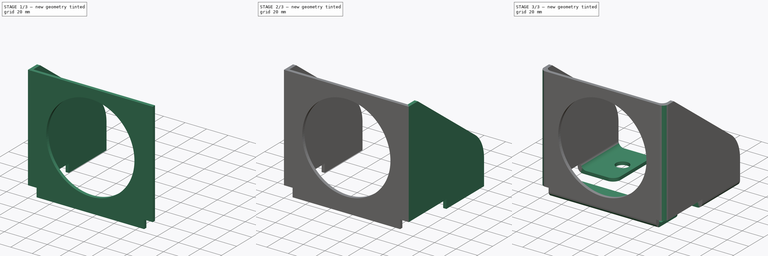
[diagram: build sequence overview — one tinted view per stage of 3, left to right]
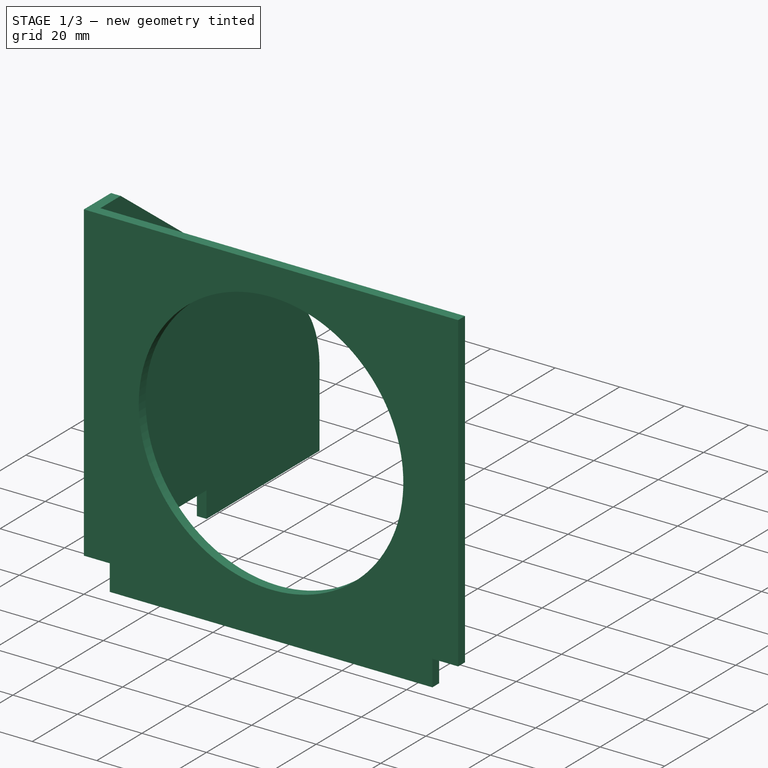
[diagram: stage 1 of 3 — iso view after this stage's code; geometry added in this stage tinted green]
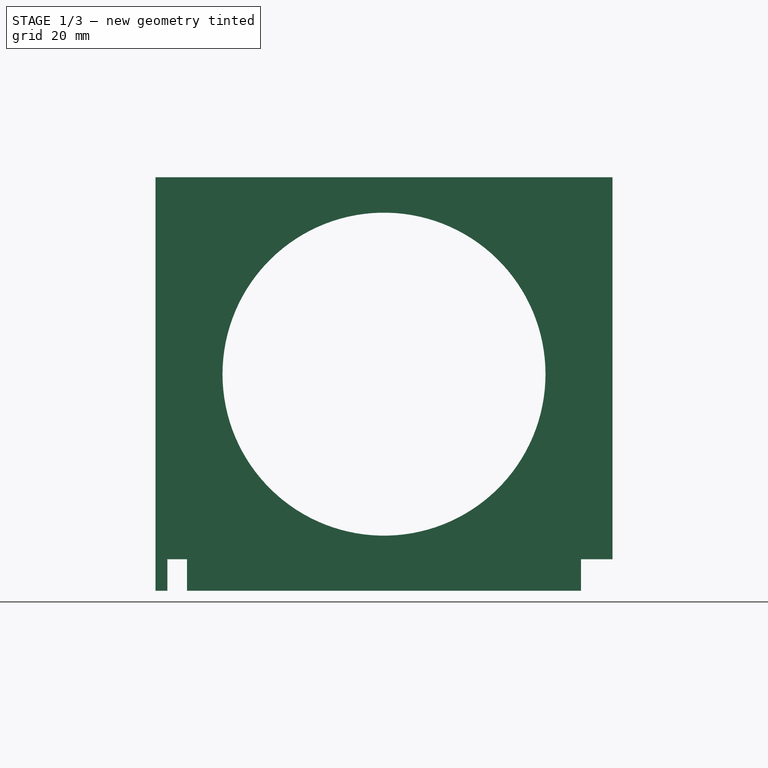
[diagram: stage 1 of 3 — front view after this stage's code; geometry added in this stage tinted green]
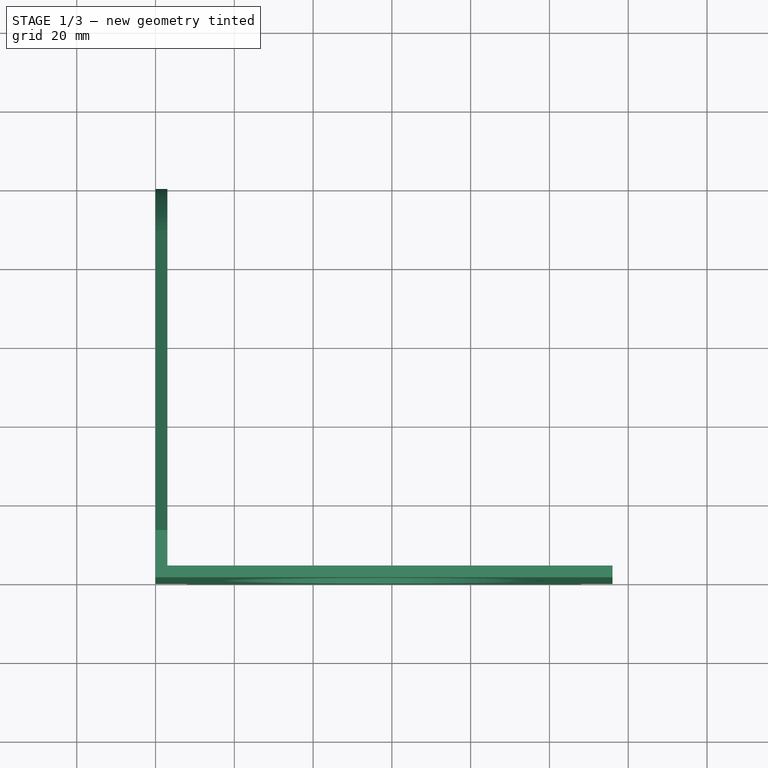
[diagram: stage 1 of 3 — top view after this stage's code; geometry added in this stage tinted green]
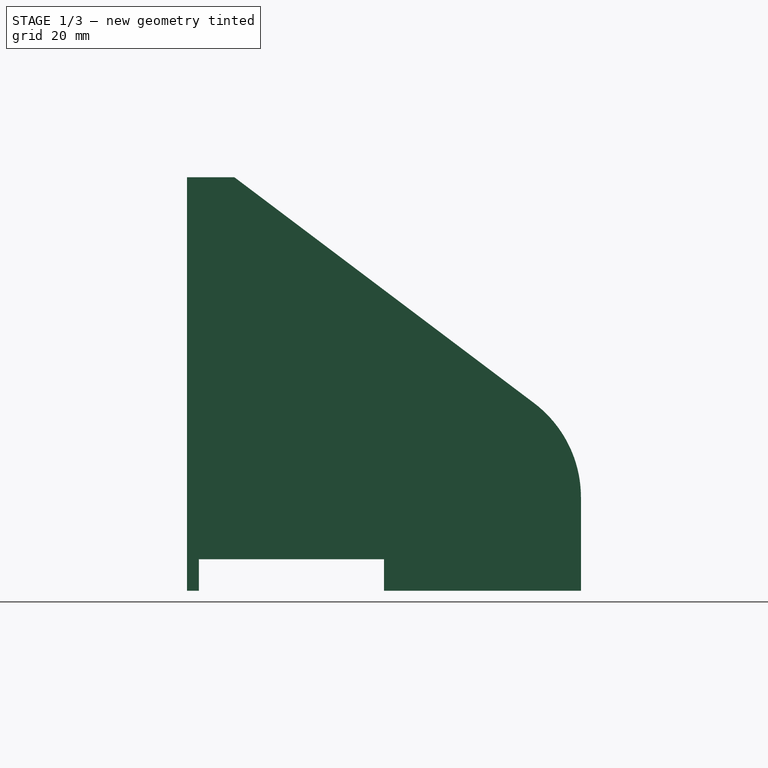
[diagram: stage 1 of 3 — right view after this stage's code; geometry added in this stage tinted green]
FCSTD DOCUMENT  (FreeCAD 1.0R39319 (Git))
Label: Challenge24-01-07
License: All rights reserved
LicenseURL: https://en.wikipedia.org/wiki/All_rights_reserved
objects: Sketcher::SketchObject×3, PartDesign::Pad×3, PartDesign::Plane×1, PartDesign::Mirrored×1, PartDesign::Fillet×1, PartDesign::Body×1
note: 22 computed .brp shape members not serialized (recipe doc carries the construction recipe); baked Part::Feature solids carry a one-line shape summary decoded from their .brp

FEATURE [Sketcher::SketchObject] Sketch
  ArcFitTolerance = 1e-06
  AttachmentSupport = -> [XZ_Plane]
  FullyConstrained = false
  MakeInternals = false
  MapMode = 5
  Placement = pos=(0,0,0) rot=(1,0,0;1.5708rad)
  sketch-geometry (11):
    g0: LineSegment StartX=8 StartY=0 StartZ=0 EndX=108 EndY=0 EndZ=0
    g1: LineSegment StartX=116 StartY=8 StartZ=0 EndX=116 EndY=105 EndZ=0
    g2: LineSegment StartX=116 StartY=105 StartZ=0 EndX=0 EndY=105 EndZ=0
    g3: LineSegment StartX=0 StartY=105 StartZ=0 EndX=0 EndY=8 EndZ=0
    g4: Circle CenterX=58 CenterY=55 CenterZ=0 NormalX=0 NormalY=0 NormalZ=1 AngleXU=0 Radius=41
    g5: GeomPoint [constr] X=116 Y=0 Z=0
    g6: GeomPoint [constr] X=0 Y=0 Z=0
    g7: LineSegment StartX=8 StartY=0 StartZ=0 EndX=8 EndY=8 EndZ=0
    g8: LineSegment StartX=0 StartY=8 StartZ=0 EndX=8 EndY=8 EndZ=0
    g9: LineSegment StartX=108 StartY=0 StartZ=0 EndX=108 EndY=8 EndZ=0
    g10: LineSegment StartX=116 StartY=8 StartZ=0 EndX=108 EndY=8 EndZ=0
  constraints (26):
    c: Coincident(g1,g2)
    c: Coincident(g2,g3)
    c: Horizontal(g0)
    c: Horizontal(g2)
    c: Vertical(g1)
    c: Vertical(g3)
    c: Distance(g5,g6) = 116
    c: Distance(g6,g2) = 105
    c: Coincident(g6,g-1)
    c: Diameter(g4) = 82
    c: DistanceY(g4,g2) = 50
    c: DistanceX(g-1,g4) = 58
    c: PointOnObject(g5,g0)
    c: PointOnObject(g5,g1)
    c: PointOnObject(g6,g0)
    c: PointOnObject(g6,g3)
    c: Coincident(g7,g0)
    c: Vertical(g7)
    c: Coincident(g8,g3)
    c: Coincident(g8,g7)
    c: Distance(g7,g7) = 8
    c: DistanceX(g8,g8) = 8
    c: Distance(g9) = 8
    c: Vertical(g9)
    c: Coincident(g9,g0)
    c: DistanceX(g10,g10) = 8
FEATURE [PartDesign::Pad] Pad
  Direction = (0,-1,2e-16)
  Length = 3
  Length2 = 10
  Placement = pos=(0,0,0) rot=(1,0,0;1.5708rad)
  Profile = -> Sketch
  ReferenceAxis = -> Sketch [N_Axis]
  Refine = true
  Reversed = true
  Suppressed = false
  Type = 0
FEATURE [Sketcher::SketchObject] Sketch001
  ArcFitTolerance = 1e-06
  AttachmentSupport = -> [YZ_Plane]
  ExternalGeometry = -> [Pad]
  FullyConstrained = true
  MakeInternals = false
  MapMode = 5
  Placement = pos=(0,0,0) rot=(0.57735,0.57735,0.57735;2.0944rad)
  sketch-geometry (9):
    g0: LineSegment StartX=2.33e-14 StartY=105 StartZ=0 EndX=12 EndY=105 EndZ=0
    g1: LineSegment StartX=12 StartY=105 StartZ=0 EndX=88.0545 EndY=47.6889 EndZ=0
    g2: LineSegment StartX=100 StartY=23.7298 StartZ=0 EndX=100 EndY=0 EndZ=0
    g3: LineSegment StartX=100 StartY=0 StartZ=0 EndX=50 EndY=0 EndZ=0
    g4: LineSegment StartX=50 StartY=0 StartZ=0 EndX=50 EndY=8 EndZ=0
    g5: LineSegment StartX=50 StartY=8 StartZ=0 EndX=0 EndY=8 EndZ=0
    g6: LineSegment StartX=0 StartY=8 StartZ=0 EndX=2.33e-14 EndY=105 EndZ=0
    g7: ArcOfCircle CenterX=70 CenterY=23.7298 CenterZ=0 NormalX=0 NormalY=0 NormalZ=1 AngleXU=0 Radius=30 StartAngle=0 EndAngle=0.925025
    g8: GeomPoint [constr] X=100 Y=38.6872 Z=0
  constraints (23):
    c: Coincident(g-3,g0)
    c: Coincident(g0,g1)
    c: PointOnObject(g2,g-1)
    c: Vertical(g2)
    c: Coincident(g2,g3)
    c: PointOnObject(g3,g-1)
    c: Coincident(g3,g4)
    c: Coincident(g4,g5)
    c: Coincident(g5,g-4)
    c: Coincident(g5,g6)
    c: Coincident(g6,g0)
    c: Vertical(g4)
    c: Horizontal(g5)
    c: Horizontal(g0)
    c: DistanceX(g0,g0) = 12
    c: DistanceX(g-1,g2) = 100
    c: PointOnObject(g8,g1)
    c: PointOnObject(g8,g2)
    c: Tangent(g1,g7) = 1.5708
    c: Tangent(g2,g7) = 1.5708
    c: Radius(g7) = 30
    c: Angle(g1,g5) = 0.645772
    c: DistanceX(g3,g3) = 50
FEATURE [PartDesign::Pad] Pad001
  BaseFeature = -> Pad
  Direction = (1,0,0)
  Length = 3
  Length2 = 10
  Placement = pos=(0,0,0) rot=(1,0,0;1.5708rad)
  Profile = -> Sketch001
  ReferenceAxis = -> Sketch001 [N_Axis]
  Refine = true
  Suppressed = false
  Type = 0
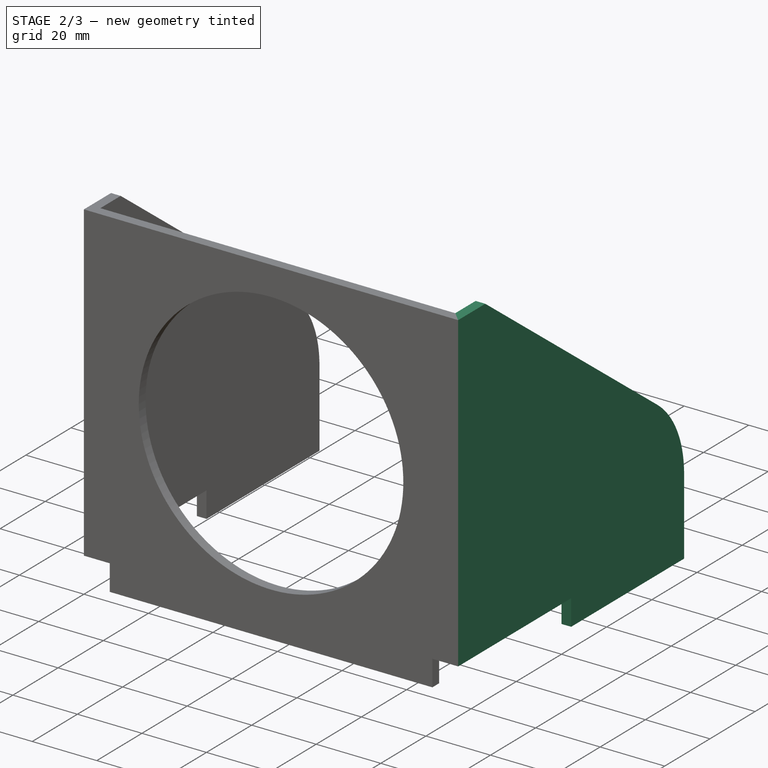
[diagram: stage 2 of 3 — iso view after this stage's code; geometry added in this stage tinted green]
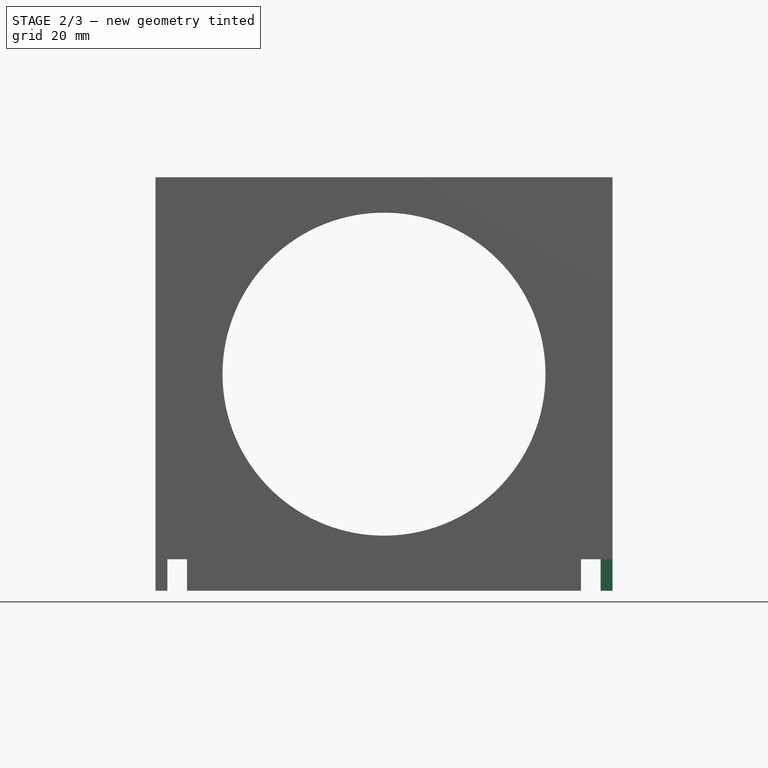
[diagram: stage 2 of 3 — front view after this stage's code; geometry added in this stage tinted green]
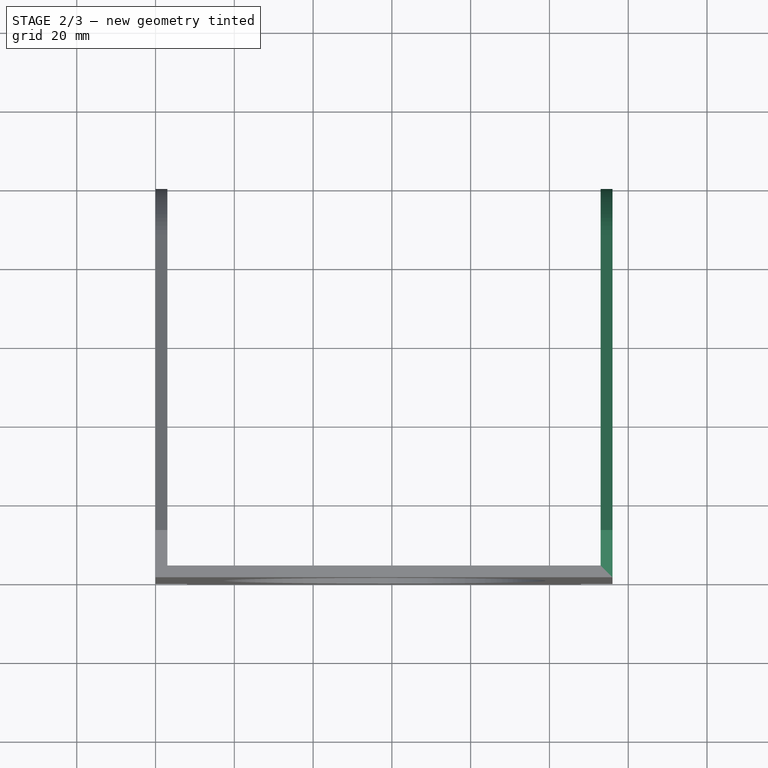
[diagram: stage 2 of 3 — top view after this stage's code; geometry added in this stage tinted green]
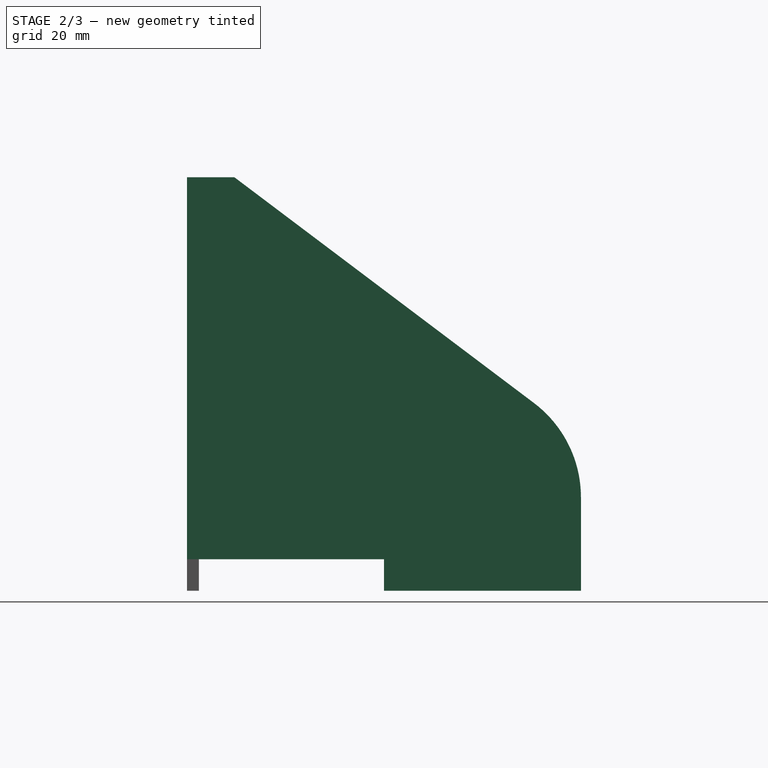
[diagram: stage 2 of 3 — right view after this stage's code; geometry added in this stage tinted green]
FEATURE [PartDesign::Plane] DatumPlane
  AttachmentOffset = pos=(58,0,0) rot=(0,1,0;1.5708rad)
  AttachmentSupport = -> [Pad001]
  Length = 150.495
  MapMode = 5
  Placement = pos=(58,3,0) rot=(-0.57735,0.57735,-0.57735;2.0944rad)
  ResizeMode = 0
  Width = 155.495
FEATURE [PartDesign::Mirrored] Mirrored
  BaseFeature = -> Pad001
  MirrorPlane = -> DatumPlane
  Originals = -> [Pad001]
  Placement = pos=(0,0,0) rot=(1,0,0;1.5708rad)
  Refine = true
  Suppressed = false
  TransformMode = 0
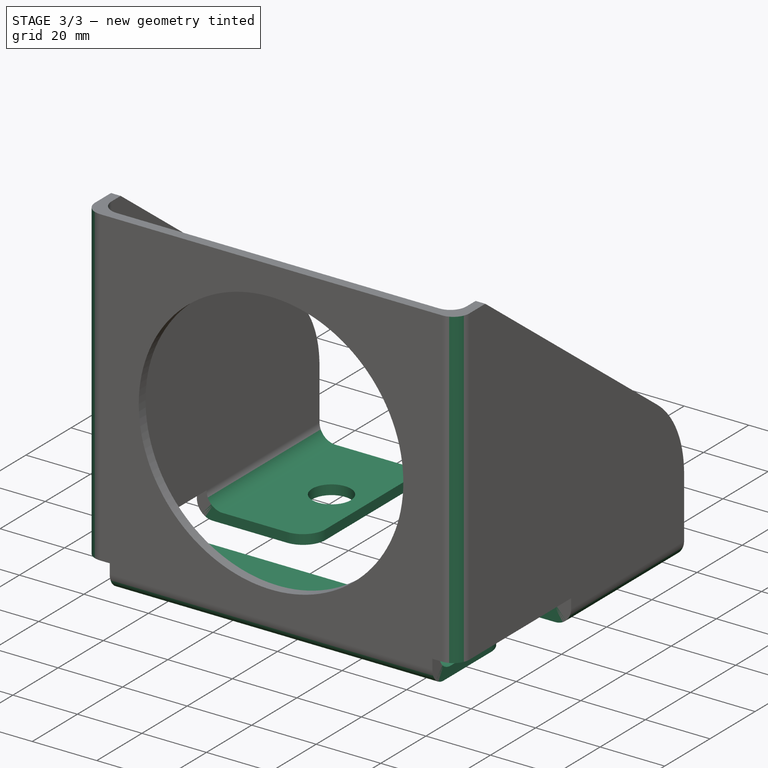
[diagram: stage 3 of 3 — iso view after this stage's code; geometry added in this stage tinted green]
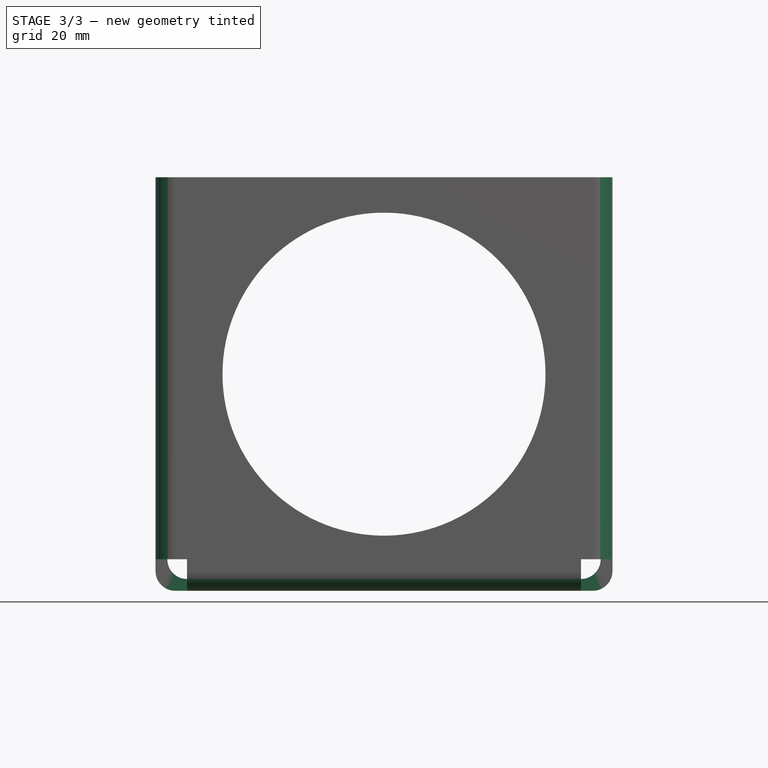
[diagram: stage 3 of 3 — front view after this stage's code; geometry added in this stage tinted green]
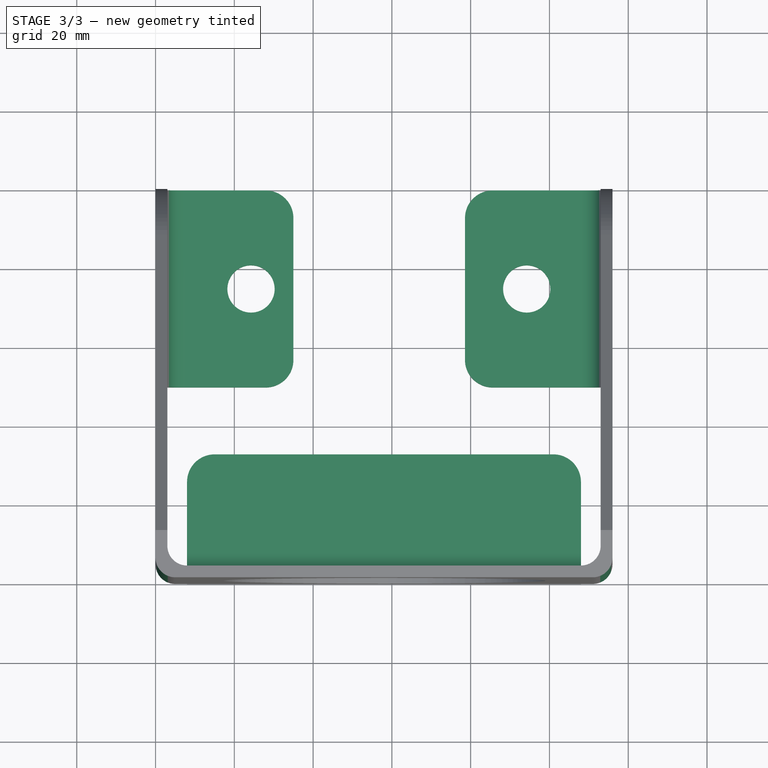
[diagram: stage 3 of 3 — top view after this stage's code; geometry added in this stage tinted green]
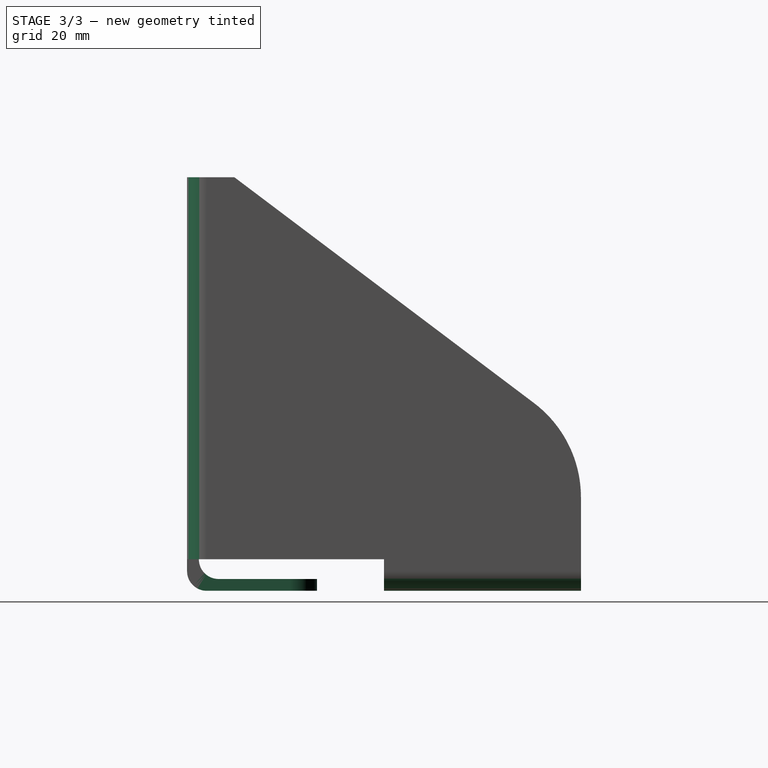
[diagram: stage 3 of 3 — right view after this stage's code; geometry added in this stage tinted green]
FEATURE [Sketcher::SketchObject] Sketch003
  ArcFitTolerance = 1e-06
  AttachmentSupport = -> [Mirrored]
  ExternalGeometry = -> [Mirrored]
  FullyConstrained = false
  MakeInternals = false
  MapMode = 5
  Placement = pos=(0,0,0) rot=(1,0,0;3.14159rad)
  sketch-geometry (26):
    g0: LineSegment StartX=3 StartY=-50 StartZ=0 EndX=28 EndY=-50 EndZ=0
    g1: LineSegment StartX=35 StartY=-57 StartZ=0 EndX=35 EndY=-93 EndZ=0
    g2: LineSegment StartX=28 StartY=-100 StartZ=0 EndX=3 EndY=-100 EndZ=0
    g3: LineSegment StartX=3 StartY=-100 StartZ=0 EndX=3 EndY=-50 EndZ=0
    g4: LineSegment StartX=113 StartY=-50 StartZ=0 EndX=85.5655 EndY=-50 EndZ=0
    g5: LineSegment StartX=78.5655 StartY=-57 StartZ=0 EndX=78.5655 EndY=-93 EndZ=0
    g6: LineSegment StartX=85.5655 StartY=-100 StartZ=0 EndX=113 EndY=-100 EndZ=0
    g7: LineSegment StartX=113 StartY=-100 StartZ=0 EndX=113 EndY=-50 EndZ=0
    g8: Circle CenterX=24.2362 CenterY=-75 CenterZ=0 NormalX=0 NormalY=0 NormalZ=1 AngleXU=0 Radius=6
    g9: Circle CenterX=94.2362 CenterY=-75 CenterZ=0 NormalX=0 NormalY=0 NormalZ=1 AngleXU=0 Radius=6
    g10: LineSegment StartX=8 StartY=-3 StartZ=0 EndX=8 EndY=-26 EndZ=0
    g11: LineSegment StartX=15 StartY=-33 StartZ=0 EndX=101 EndY=-33 EndZ=0
    g12: LineSegment StartX=108 StartY=-26 StartZ=0 EndX=108 EndY=-3 EndZ=0
    g13: LineSegment StartX=108 StartY=-3 StartZ=0 EndX=8 EndY=-3 EndZ=0
    g14: ArcOfCircle CenterX=28 CenterY=-57 CenterZ=0 NormalX=0 NormalY=0 NormalZ=1 AngleXU=0 Radius=7 StartAngle=0 EndAngle=1.5708
    g15: GeomPoint [constr] X=35 Y=-50 Z=0
    g16: ArcOfCircle CenterX=85.5655 CenterY=-57 CenterZ=0 NormalX=0 NormalY=0 NormalZ=1 AngleXU=0 Radius=7 StartAngle=1.5708 EndAngle=3.14159
    g17: GeomPoint [constr] X=78.5655 Y=-50 Z=0
    g18: ArcOfCircle CenterX=15 CenterY=-26 CenterZ=0 NormalX=0 NormalY=0 NormalZ=1 AngleXU=0 Radius=7 StartAngle=3.14159 EndAngle=4.71239
    g19: GeomPoint [constr] X=8 Y=-33 Z=0
    g20: ArcOfCircle CenterX=101 CenterY=-26 CenterZ=0 NormalX=0 NormalY=0 NormalZ=1 AngleXU=0 Radius=7 StartAngle=4.71239 EndAngle=6.28319
    g21: GeomPoint [constr] X=108 Y=-33 Z=0
    g22: ArcOfCircle CenterX=85.5655 CenterY=-93 CenterZ=0 NormalX=0 NormalY=0 NormalZ=1 AngleXU=0 Radius=7 StartAngle=3.14159 EndAngle=4.71239
    g23: GeomPoint [constr] X=78.5655 Y=-100 Z=0
    g24: ArcOfCircle CenterX=28 CenterY=-93 CenterZ=0 NormalX=0 NormalY=0 NormalZ=1 AngleXU=0 Radius=7 StartAngle=4.71239 EndAngle=6.28319
    g25: GeomPoint [constr] X=35 Y=-100 Z=0
  constraints (58):
    c: Coincident(g-4,g0)
    c: Horizontal(g0)
    c: Vertical(g1)
    c: Coincident(g2,g-4)
    c: Coincident(g2,g3)
    c: Coincident(g3,g0)
    c: Horizontal(g2)
    c: Coincident(g-5,g4)
    c: Horizontal(g4)
    c: Vertical(g5)
    c: Coincident(g6,g-5)
    c: Coincident(g6,g7)
    c: Coincident(g7,g4)
    c: Horizontal(g6)
    c: Diameter(g8) = 12
    c: Equal(g8,g9)
    c: DistanceY(g2,g8) = 25
    c: DistanceX(g8,g9) = 70
    c: DistanceX(g-1,g25) = 35
    c: DistanceY(g-6,g9) = 25
    c: Coincident(g12,g13)
    c: Coincident(g13,g10)
    c: Vertical(g10)
    c: Vertical(g12)
    c: Horizontal(g11)
    c: Coincident(g10,g-3)
    c: Coincident(g-3,g12)
    c: DistanceY(g21,g12) = 30
    c: PointOnObject(g15,g0)
    c: PointOnObject(g15,g1)
    c: Tangent(g0,g14) = 1.5708
    c: Tangent(g1,g14) = 1.5708
    c: PointOnObject(g17,g4)
    c: PointOnObject(g17,g5)
    c: Tangent(g4,g16) = -1.5708
    c: Tangent(g5,g16) = -1.5708
    c: PointOnObject(g19,g10)
    c: PointOnObject(g19,g11)
    c: Tangent(g10,g18) = -1.5708
    c: Tangent(g11,g18) = -1.5708
    c: PointOnObject(g21,g11)
    c: PointOnObject(g21,g12)
    c: Tangent(g11,g20) = -1.5708
    c: Tangent(g12,g20) = -1.5708
    c: PointOnObject(g23,g5)
    c: PointOnObject(g23,g6)
    c: Tangent(g5,g22) = -1.5708
    c: Tangent(g6,g22) = -1.5708
    c: PointOnObject(g25,g1)
    c: PointOnObject(g25,g2)
    c: Tangent(g1,g24) = 1.5708
    c: Tangent(g2,g24) = 1.5708
    c: Equal(g18,g20)
    c: Equal(g20,g16)
    c: Equal(g16,g14)
    c: Equal(g14,g24)
    c: Equal(g24,g22)
    c: Radius(g18) = 7
FEATURE [PartDesign::Pad] Pad002
  BaseFeature = -> Mirrored
  Direction = (0,0,-1)
  Length = 3
  Length2 = 10
  Placement = pos=(0,0,0) rot=(1,0,0;1.5708rad)
  Profile = -> Sketch003
  ReferenceAxis = -> Sketch003 [N_Axis]
  Refine = true
  Reversed = true
  Suppressed = false
  Type = 0
FEATURE [PartDesign::Fillet] Fillet
  Base = -> Pad002 [Edge66,Edge7,Edge32,Edge13,Edge44,Edge57,Edge11,Edge29,Edge16,Edge41]
  BaseFeature = -> Pad002
  Placement = pos=(0,0,0) rot=(1,0,0;1.5708rad)
  Radius = 5
  Refine = true
  SupportTransform = false
  Suppressed = false
  UseAllEdges = false
FEATURE [PartDesign::Body] Body
  AllowCompound = false
  Group = -> [Sketch,Pad,Sketch001,Pad001,DatumPlane,Mirrored,Sketch003,Pad002,Fillet]
  Origin = -> Origin
  Tip = -> Fillet
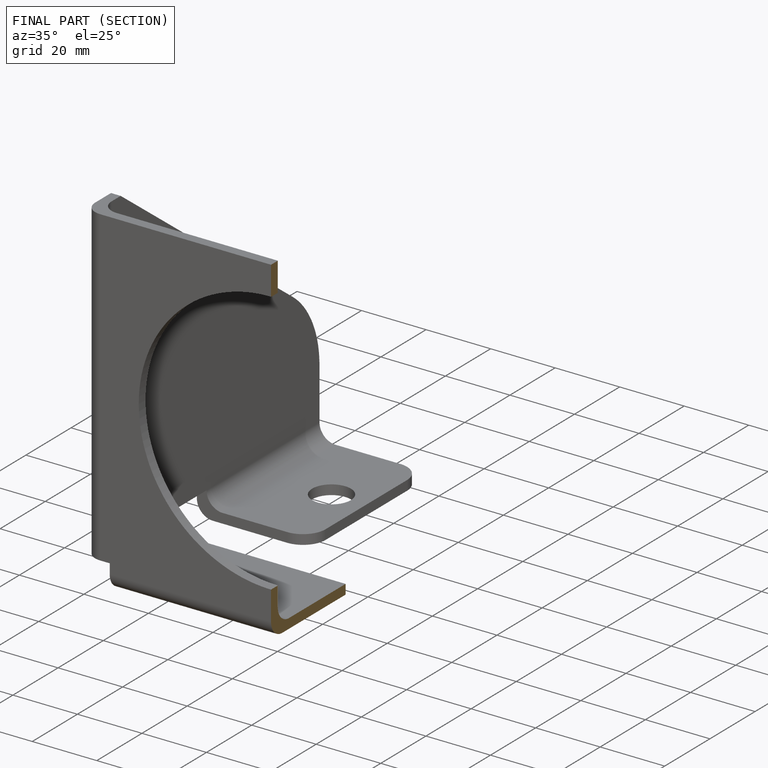
[diagram: finished part — half-section view (interior)]
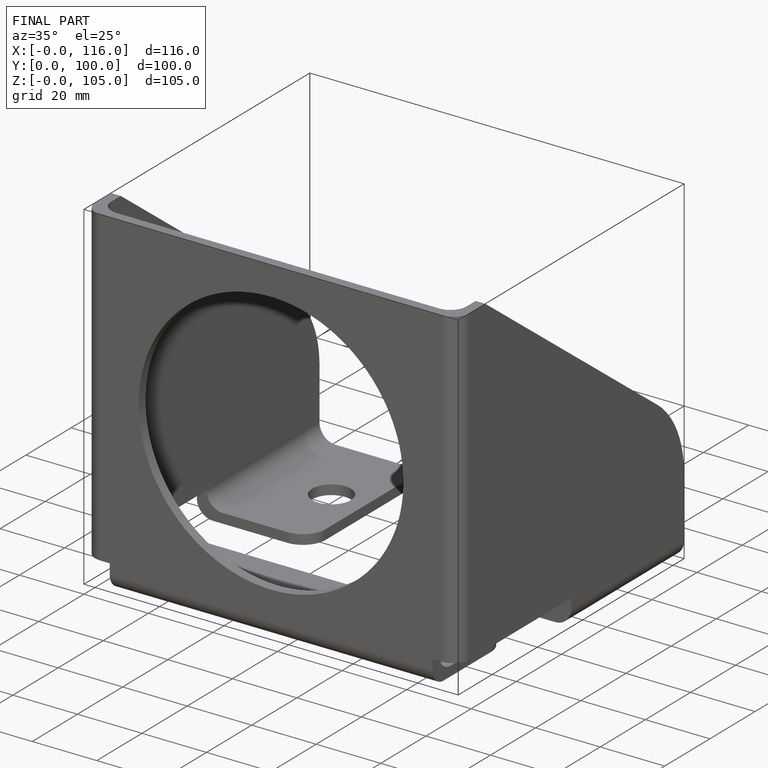
[diagram: finished part — iso view with bounding-box wireframe]
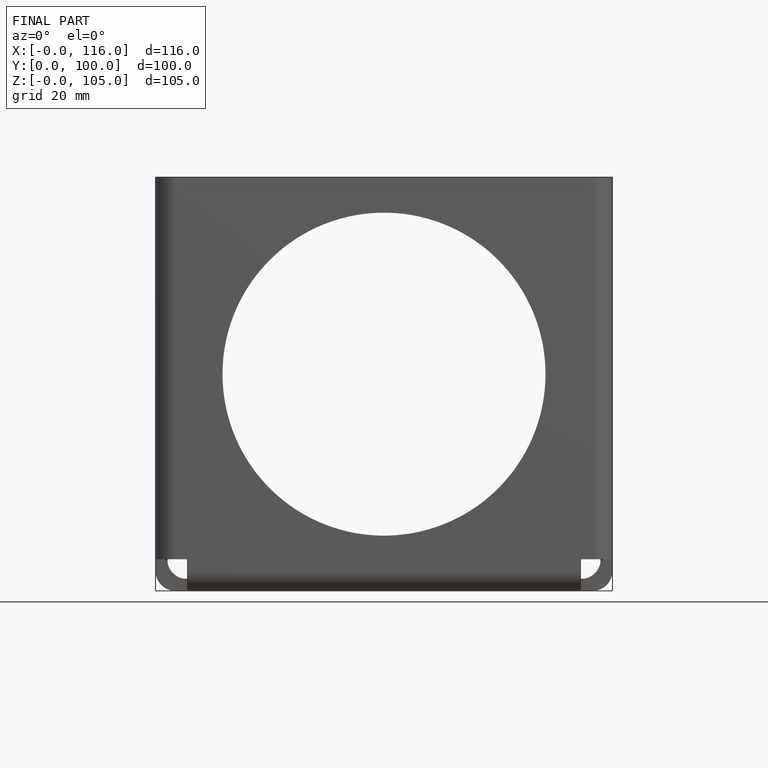
[diagram: finished part — front view with bounding-box wireframe]
